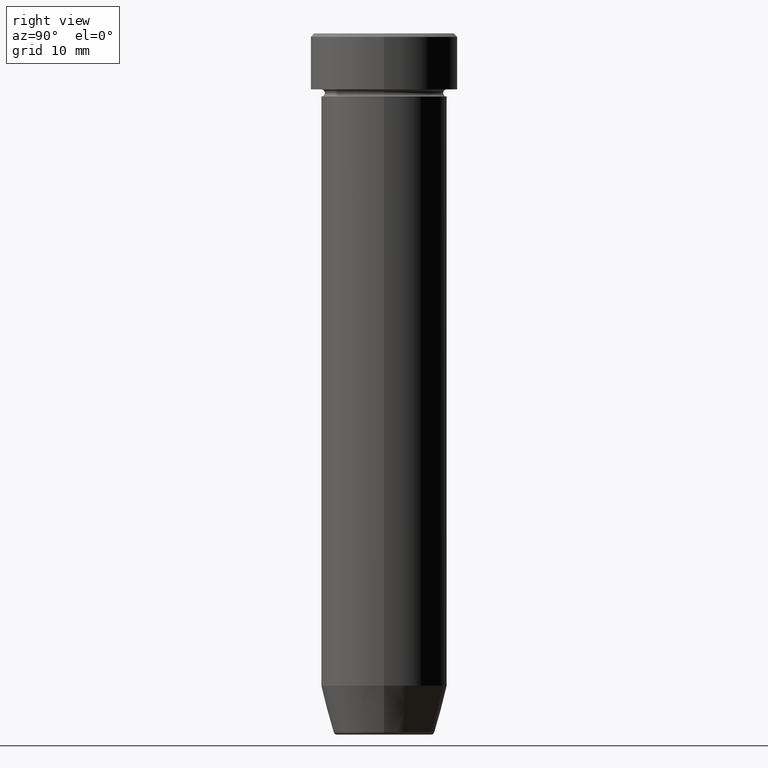
[diagram: clean part render]
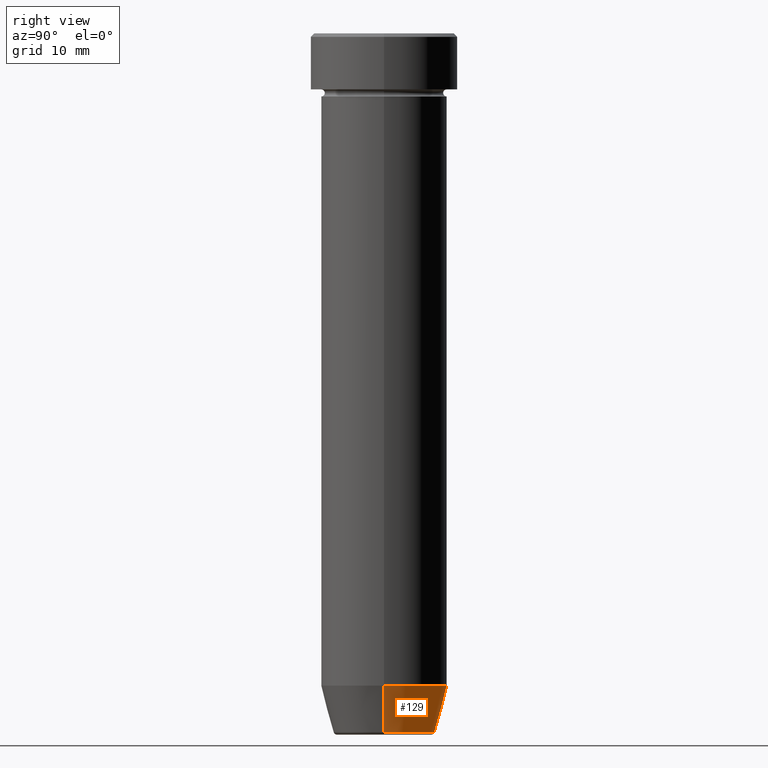
[diagram: same view with one face highlighted and labeled with its STEP entity id]
A machine part, right view. The second image highlights one B-rep face of the part: STEP entity #129.
In plain terms, the highlighted conical surface has half-angle 15 deg.
Its self-contained STEP definition (entity closure, byte-faithful):
#4 = CARTESIAN_POINT ( 'NONE',  ( 0.000000000000000000, 0.000000000000000000, -99.62940952255128479 ) ) ;
#44 = DIRECTION ( 'NONE',  ( -0.2588190451025210725, 3.169619151431769255E-17, 0.9659258262890680902 ) ) ;
#73 = VERTEX_POINT ( 'NONE', #427 ) ;
#94 = CARTESIAN_POINT ( 'NONE',  ( -7.124355652982136355, 8.724819346411924116E-16, -100.0000000000000000 ) ) ;
#100 = LINE ( 'NONE', #286, #145 ) ;
#105 = VERTEX_POINT ( 'NONE', #418 ) ;
#129 = ADVANCED_FACE ( 'NONE', ( #375 ), #461, .T. ) ;
#139 = DIRECTION ( 'NONE',  ( -0.000000000000000000, -0.000000000000000000, 1.000000000000000000 ) ) ;
#145 = VECTOR ( 'NONE', #577, 1000.000000000000114 ) ;
#153 = VERTEX_POINT ( 'NONE', #562 ) ;
#166 = EDGE_CURVE ( 'NONE', #526, #153, #292, .T. ) ;
#184 = CARTESIAN_POINT ( 'NONE',  ( 7.223655072137189492, 0.000000000000000000, -99.62940952255128479 ) ) ;
#199 = DIRECTION ( 'NONE',  ( -0.000000000000000000, -0.000000000000000000, 1.000000000000000000 ) ) ;
#200 = EDGE_LOOP ( 'NONE', ( #342, #529, #214, #574 ) ) ;
#214 = ORIENTED_EDGE ( 'NONE', *, *, #256, .F. ) ;
#233 = AXIS2_PLACEMENT_3D ( 'NONE', #296, #481, #379 ) ;
#241 = CIRCLE ( 'NONE', #233, 9.000000000000000000 ) ;
#256 = EDGE_CURVE ( 'NONE', #105, #73, #241, .T. ) ;
#270 = LINE ( 'NONE', #94, #532 ) ;
#272 = AXIS2_PLACEMENT_3D ( 'NONE', #555, #139, #546 ) ;
#279 = EDGE_CURVE ( 'NONE', #526, #105, #100, .T. ) ;
#286 = CARTESIAN_POINT ( 'NONE',  ( 7.124355652982136355, 0.000000000000000000, -100.0000000000000000 ) ) ;
#292 = CIRCLE ( 'NONE', #325, 7.223655072137189492 ) ;
#296 = CARTESIAN_POINT ( 'NONE',  ( 0.000000000000000000, 0.000000000000000000, -93.00000000000000000 ) ) ;
#325 = AXIS2_PLACEMENT_3D ( 'NONE', #4, #199, #344 ) ;
#342 = ORIENTED_EDGE ( 'NONE', *, *, #166, .T. ) ;
#344 = DIRECTION ( 'NONE',  ( -1.000000000000000000, 0.000000000000000000, 0.000000000000000000 ) ) ;
#375 = FACE_OUTER_BOUND ( 'NONE', #200, .T. ) ;
#379 = DIRECTION ( 'NONE',  ( 1.000000000000000000, 0.000000000000000000, 0.000000000000000000 ) ) ;
#418 = CARTESIAN_POINT ( 'NONE',  ( 9.000000000000000000, 0.000000000000000000, -93.00000000000000000 ) ) ;
#427 = CARTESIAN_POINT ( 'NONE',  ( -9.000000000000000000, 1.102182119232617714E-15, -93.00000000000000000 ) ) ;
#461 = CONICAL_SURFACE ( 'NONE', #272, 7.124355652982136355, 0.2617993877991497964 ) ;
#481 = DIRECTION ( 'NONE',  ( -0.000000000000000000, -0.000000000000000000, 1.000000000000000000 ) ) ;
#513 = EDGE_CURVE ( 'NONE', #153, #73, #270, .T. ) ;
#526 = VERTEX_POINT ( 'NONE', #184 ) ;
#529 = ORIENTED_EDGE ( 'NONE', *, *, #513, .T. ) ;
#532 = VECTOR ( 'NONE', #44, 1000.000000000000114 ) ;
#546 = DIRECTION ( 'NONE',  ( 1.000000000000000000, 0.000000000000000000, 0.000000000000000000 ) ) ;
#555 = CARTESIAN_POINT ( 'NONE',  ( 0.000000000000000000, 0.000000000000000000, -100.0000000000000000 ) ) ;
#562 = CARTESIAN_POINT ( 'NONE',  ( -7.223655072137189492, 9.934123627281763137E-16, -99.62940952255128479 ) ) ;
#574 = ORIENTED_EDGE ( 'NONE', *, *, #279, .F. ) ;
#577 = DIRECTION ( 'NONE',  ( 0.2588190451025210725, 0.000000000000000000, 0.9659258262890680902 ) ) ;